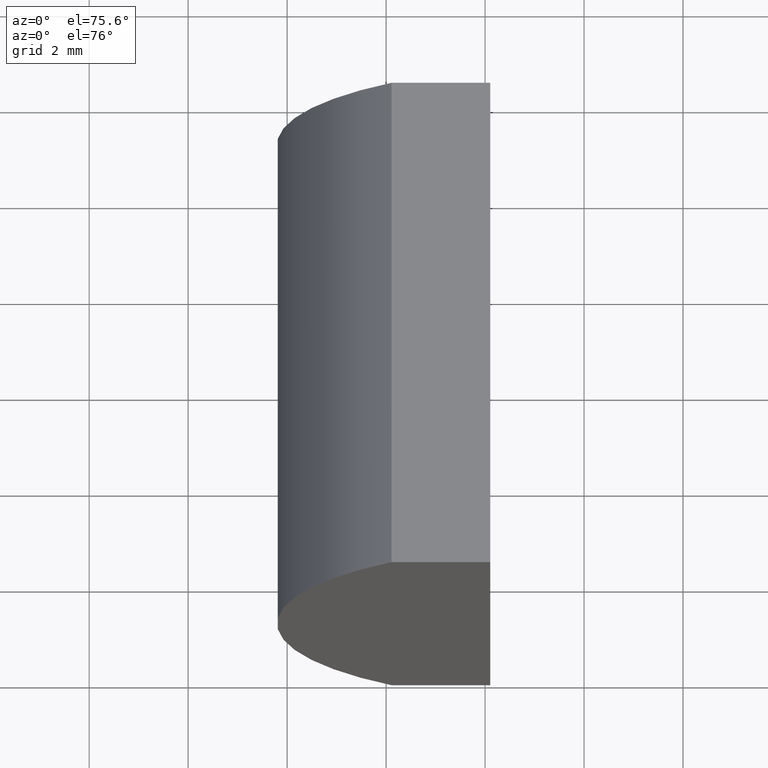
[diagram: clean part render]
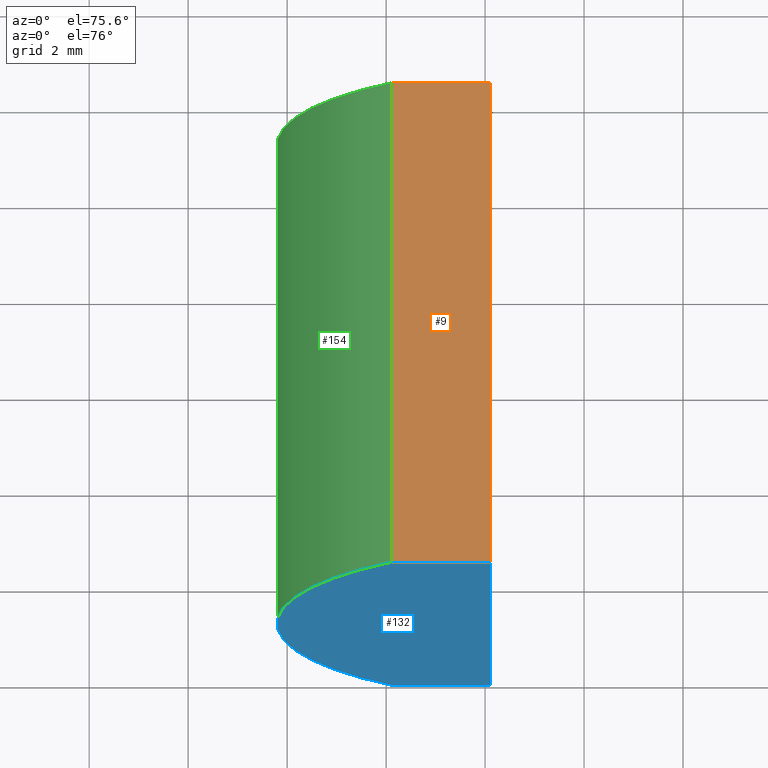
[diagram: same view with three faces highlighted in distinct colors, each labeled with its STEP entity id]
A machine part, auxiliary view with three faces highlighted in distinct colors.
Their STEP definitions:

[orange] entity #9 — the highlighted planar face has unit normal (0, 0, -1).
#3 = CARTESIAN_POINT ( 'NONE',  ( 0.1086056959403540700, 0.0000000000000000000, 5.000000000000000000 ) ) ;
#7 = VECTOR ( 'NONE', #112, 1000.000000000000000 ) ;
#9 = ADVANCED_FACE ( 'NONE', ( #183 ), #93, .F. ) ;
#17 = LINE ( 'NONE', #46, #158 ) ;
#32 = CARTESIAN_POINT ( 'NONE',  ( 0.1086056959403540700, 10.00000000000000000, 5.000000000000000000 ) ) ;
#33 = DIRECTION ( 'NONE',  ( 0.0000000000000000000, 0.0000000000000000000, -1.000000000000000000 ) ) ;
#44 = EDGE_CURVE ( 'NONE', #51, #200, #138, .T. ) ;
#46 = CARTESIAN_POINT ( 'NONE',  ( 2.105204334851265900, 10.00000000000000000, 5.000000000000000000 ) ) ;
#51 = VERTEX_POINT ( 'NONE', #133 ) ;
#53 = DIRECTION ( 'NONE',  ( -0.0000000000000000000, -1.000000000000000000, -0.0000000000000000000 ) ) ;
#67 = LINE ( 'NONE', #153, #74 ) ;
#72 = DIRECTION ( 'NONE',  ( -0.0000000000000000000, -1.000000000000000000, -0.0000000000000000000 ) ) ;
#73 = ORIENTED_EDGE ( 'NONE', *, *, #92, .F. ) ;
#74 = VECTOR ( 'NONE', #80, 1000.000000000000000 ) ;
#80 = DIRECTION ( 'NONE',  ( 1.000000000000000000, 0.0000000000000000000, 0.0000000000000000000 ) ) ;
#91 = ORIENTED_EDGE ( 'NONE', *, *, #194, .F. ) ;
#92 = EDGE_CURVE ( 'NONE', #51, #174, #67, .T. ) ;
#93 = PLANE ( 'NONE',  #203 ) ;
#96 = ORIENTED_EDGE ( 'NONE', *, *, #44, .T. ) ;
#112 = DIRECTION ( 'NONE',  ( 1.000000000000000000, 0.0000000000000000000, 0.0000000000000000000 ) ) ;
#129 = LINE ( 'NONE', #3, #7 ) ;
#131 = EDGE_LOOP ( 'NONE', ( #149, #91, #73, #96 ) ) ;
#133 = CARTESIAN_POINT ( 'NONE',  ( 0.1086056959403540700, 10.00000000000000000, 5.000000000000000000 ) ) ;
#138 = LINE ( 'NONE', #151, #178 ) ;
#139 = CARTESIAN_POINT ( 'NONE',  ( 2.105204334851265900, 0.0000000000000000000, 5.000000000000000000 ) ) ;
#140 = CARTESIAN_POINT ( 'NONE',  ( 0.1086056959403540700, 0.0000000000000000000, 5.000000000000000000 ) ) ;
#148 = DIRECTION ( 'NONE',  ( -1.000000000000000000, 0.0000000000000000000, -0.0000000000000000000 ) ) ;
#149 = ORIENTED_EDGE ( 'NONE', *, *, #160, .T. ) ;
#150 = CARTESIAN_POINT ( 'NONE',  ( 2.105204334851265900, 10.00000000000000000, 5.000000000000000000 ) ) ;
#151 = CARTESIAN_POINT ( 'NONE',  ( 0.1086056959403540700, 10.00000000000000000, 5.000000000000000000 ) ) ;
#153 = CARTESIAN_POINT ( 'NONE',  ( 0.1086056959403540700, 10.00000000000000000, 5.000000000000000000 ) ) ;
#158 = VECTOR ( 'NONE', #53, 1000.000000000000000 ) ;
#160 = EDGE_CURVE ( 'NONE', #200, #167, #129, .T. ) ;
#167 = VERTEX_POINT ( 'NONE', #139 ) ;
#174 = VERTEX_POINT ( 'NONE', #150 ) ;
#178 = VECTOR ( 'NONE', #72, 1000.000000000000000 ) ;
#183 = FACE_OUTER_BOUND ( 'NONE', #131, .T. ) ;
#194 = EDGE_CURVE ( 'NONE', #174, #167, #17, .T. ) ;
#200 = VERTEX_POINT ( 'NONE', #140 ) ;
#203 = AXIS2_PLACEMENT_3D ( 'NONE', #32, #33, #148 ) ;

[blue] entity #132 — the highlighted planar face has unit normal (0, 1, 0).
#1 = AXIS2_PLACEMENT_3D ( 'NONE', #145, #119, #155 ) ;
#2 = CARTESIAN_POINT ( 'NONE',  ( 4.355204334851265500, 0.0000000000000000000, 4.286263797015675000E-017 ) ) ;
#3 = CARTESIAN_POINT ( 'NONE',  ( 0.1086056959403540700, 0.0000000000000000000, 5.000000000000000000 ) ) ;
#7 = VECTOR ( 'NONE', #112, 1000.000000000000000 ) ;
#12 = VECTOR ( 'NONE', #146, 1000.000000000000000 ) ;
#15 = EDGE_CURVE ( 'NONE', #167, #79, #118, .T. ) ;
#23 = PLANE ( 'NONE',  #38 ) ;
#29 = EDGE_CURVE ( 'NONE', #173, #200, #134, .T. ) ;
#38 = AXIS2_PLACEMENT_3D ( 'NONE', #2, #159, #97 ) ;
#77 = EDGE_LOOP ( 'NONE', ( #166, #177, #130, #82 ) ) ;
#79 = VERTEX_POINT ( 'NONE', #204 ) ;
#82 = ORIENTED_EDGE ( 'NONE', *, *, #160, .F. ) ;
#86 = CARTESIAN_POINT ( 'NONE',  ( 0.1086056959403551600, 0.0000000000000000000, -5.000000000000000000 ) ) ;
#95 = VECTOR ( 'NONE', #111, 1000.000000000000000 ) ;
#97 = DIRECTION ( 'NONE',  ( 0.0000000000000000000, -0.0000000000000000000, 1.000000000000000000 ) ) ;
#101 = CARTESIAN_POINT ( 'NONE',  ( 0.1086056959403551600, 0.0000000000000000000, -5.000000000000000000 ) ) ;
#108 = CARTESIAN_POINT ( 'NONE',  ( 2.105204334851262800, 0.0000000000000000000, -5.000000000000001800 ) ) ;
#110 = FACE_OUTER_BOUND ( 'NONE', #77, .T. ) ;
#111 = DIRECTION ( 'NONE',  ( -1.000000000000000000, -0.0000000000000000000, 8.688393561777910800E-016 ) ) ;
#112 = DIRECTION ( 'NONE',  ( 1.000000000000000000, 0.0000000000000000000, 0.0000000000000000000 ) ) ;
#118 = LINE ( 'NONE', #108, #12 ) ;
#119 = DIRECTION ( 'NONE',  ( 0.0000000000000000000, 1.000000000000000000, 0.0000000000000000000 ) ) ;
#120 = LINE ( 'NONE', #86, #95 ) ;
#129 = LINE ( 'NONE', #3, #7 ) ;
#130 = ORIENTED_EDGE ( 'NONE', *, *, #15, .F. ) ;
#132 = ADVANCED_FACE ( 'NONE', ( #110 ), #23, .F. ) ;
#134 = CIRCLE ( 'NONE', #1, 6.559999999999999600 ) ;
#139 = CARTESIAN_POINT ( 'NONE',  ( 2.105204334851265900, 0.0000000000000000000, 5.000000000000000000 ) ) ;
#140 = CARTESIAN_POINT ( 'NONE',  ( 0.1086056959403540700, 0.0000000000000000000, 5.000000000000000000 ) ) ;
#144 = EDGE_CURVE ( 'NONE', #79, #173, #120, .T. ) ;
#145 = CARTESIAN_POINT ( 'NONE',  ( 4.355204334851265500, 0.0000000000000000000, 4.286263797015675000E-017 ) ) ;
#146 = DIRECTION ( 'NONE',  ( -3.035766082959411900E-016, -0.0000000000000000000, -1.000000000000000000 ) ) ;
#155 = DIRECTION ( 'NONE',  ( 0.0000000000000000000, 0.0000000000000000000, 1.000000000000000000 ) ) ;
#159 = DIRECTION ( 'NONE',  ( 0.0000000000000000000, 1.000000000000000000, 0.0000000000000000000 ) ) ;
#160 = EDGE_CURVE ( 'NONE', #200, #167, #129, .T. ) ;
#166 = ORIENTED_EDGE ( 'NONE', *, *, #29, .F. ) ;
#167 = VERTEX_POINT ( 'NONE', #139 ) ;
#173 = VERTEX_POINT ( 'NONE', #101 ) ;
#177 = ORIENTED_EDGE ( 'NONE', *, *, #144, .F. ) ;
#200 = VERTEX_POINT ( 'NONE', #140 ) ;
#204 = CARTESIAN_POINT ( 'NONE',  ( 2.105204334851262800, 0.0000000000000000000, -5.000000000000001800 ) ) ;

[green] entity #154 — the highlighted cylindrical surface (partial cylindrical patch) has radius 6.56 mm, axis along (-0, -1, -0).
#1 = AXIS2_PLACEMENT_3D ( 'NONE', #145, #119, #155 ) ;
#10 = DIRECTION ( 'NONE',  ( 0.0000000000000000000, 0.0000000000000000000, -1.000000000000000000 ) ) ;
#14 = CARTESIAN_POINT ( 'NONE',  ( 0.1086056959403551600, 10.00000000000000000, -5.000000000000000000 ) ) ;
#20 = DIRECTION ( 'NONE',  ( -0.0000000000000000000, -1.000000000000000000, -0.0000000000000000000 ) ) ;
#29 = EDGE_CURVE ( 'NONE', #173, #200, #134, .T. ) ;
#31 = EDGE_LOOP ( 'NONE', ( #202, #48, #90, #127 ) ) ;
#35 = AXIS2_PLACEMENT_3D ( 'NONE', #105, #136, #10 ) ;
#44 = EDGE_CURVE ( 'NONE', #51, #200, #138, .T. ) ;
#47 = CARTESIAN_POINT ( 'NONE',  ( 4.355204334851265500, 10.00000000000000000, 4.286263797015675000E-017 ) ) ;
#48 = ORIENTED_EDGE ( 'NONE', *, *, #44, .F. ) ;
#51 = VERTEX_POINT ( 'NONE', #133 ) ;
#57 = VECTOR ( 'NONE', #20, 1000.000000000000000 ) ;
#72 = DIRECTION ( 'NONE',  ( -0.0000000000000000000, -1.000000000000000000, -0.0000000000000000000 ) ) ;
#90 = ORIENTED_EDGE ( 'NONE', *, *, #191, .F. ) ;
#99 = FACE_OUTER_BOUND ( 'NONE', #31, .T. ) ;
#101 = CARTESIAN_POINT ( 'NONE',  ( 0.1086056959403551600, 0.0000000000000000000, -5.000000000000000000 ) ) ;
#103 = CARTESIAN_POINT ( 'NONE',  ( 0.1086056959403551600, 10.00000000000000000, -5.000000000000000000 ) ) ;
#105 = CARTESIAN_POINT ( 'NONE',  ( 4.355204334851265500, 10.00000000000000000, 4.286263797015675000E-017 ) ) ;
#119 = DIRECTION ( 'NONE',  ( 0.0000000000000000000, 1.000000000000000000, 0.0000000000000000000 ) ) ;
#124 = DIRECTION ( 'NONE',  ( 0.0000000000000000000, 1.000000000000000000, 0.0000000000000000000 ) ) ;
#125 = CYLINDRICAL_SURFACE ( 'NONE', #35, 6.559999999999999600 ) ;
#127 = ORIENTED_EDGE ( 'NONE', *, *, #179, .T. ) ;
#133 = CARTESIAN_POINT ( 'NONE',  ( 0.1086056959403540700, 10.00000000000000000, 5.000000000000000000 ) ) ;
#134 = CIRCLE ( 'NONE', #1, 6.559999999999999600 ) ;
#136 = DIRECTION ( 'NONE',  ( -0.0000000000000000000, -1.000000000000000000, -0.0000000000000000000 ) ) ;
#138 = LINE ( 'NONE', #151, #178 ) ;
#140 = CARTESIAN_POINT ( 'NONE',  ( 0.1086056959403540700, 0.0000000000000000000, 5.000000000000000000 ) ) ;
#145 = CARTESIAN_POINT ( 'NONE',  ( 4.355204334851265500, 0.0000000000000000000, 4.286263797015675000E-017 ) ) ;
#151 = CARTESIAN_POINT ( 'NONE',  ( 0.1086056959403540700, 10.00000000000000000, 5.000000000000000000 ) ) ;
#152 = VERTEX_POINT ( 'NONE', #14 ) ;
#154 = ADVANCED_FACE ( 'NONE', ( #99 ), #125, .T. ) ;
#155 = DIRECTION ( 'NONE',  ( 0.0000000000000000000, 0.0000000000000000000, 1.000000000000000000 ) ) ;
#156 = CIRCLE ( 'NONE', #185, 6.559999999999999600 ) ;
#173 = VERTEX_POINT ( 'NONE', #101 ) ;
#178 = VECTOR ( 'NONE', #72, 1000.000000000000000 ) ;
#179 = EDGE_CURVE ( 'NONE', #152, #173, #180, .T. ) ;
#180 = LINE ( 'NONE', #103, #57 ) ;
#185 = AXIS2_PLACEMENT_3D ( 'NONE', #47, #124, #193 ) ;
#191 = EDGE_CURVE ( 'NONE', #152, #51, #156, .T. ) ;
#193 = DIRECTION ( 'NONE',  ( 0.0000000000000000000, 0.0000000000000000000, 1.000000000000000000 ) ) ;
#200 = VERTEX_POINT ( 'NONE', #140 ) ;
#202 = ORIENTED_EDGE ( 'NONE', *, *, #29, .T. ) ;